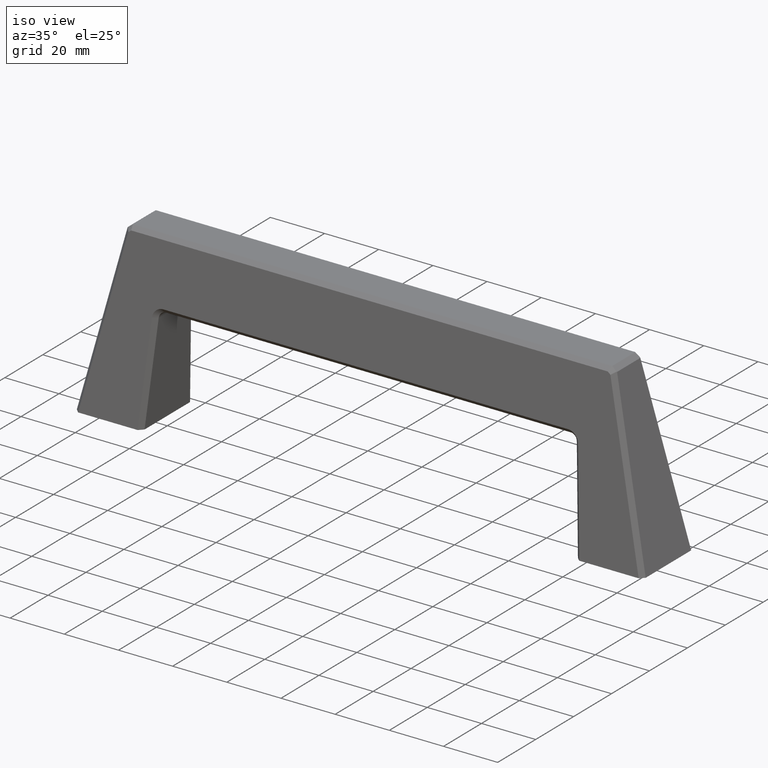
[diagram: clean part render]
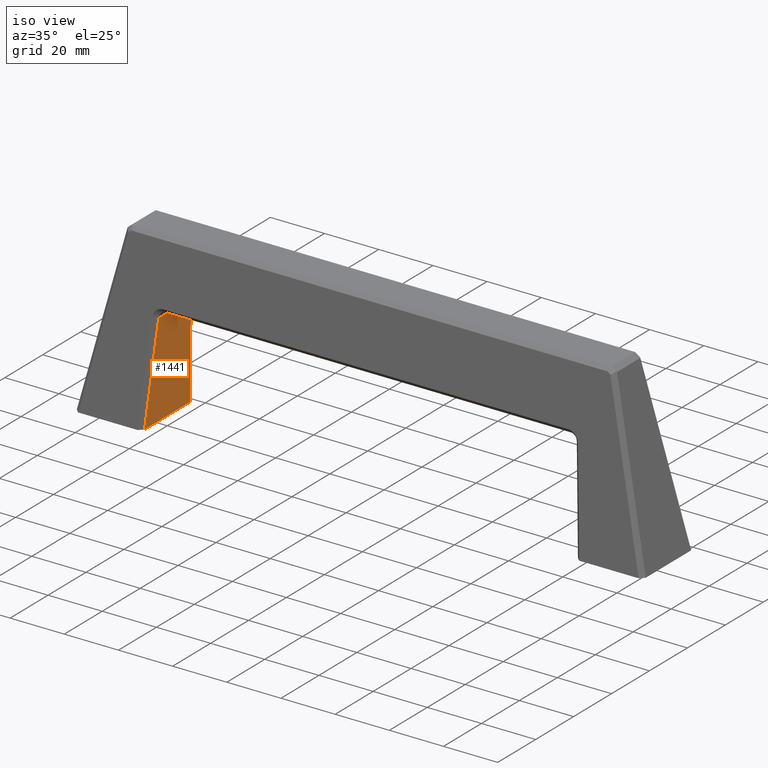
[diagram: same view with one face highlighted and labeled with its STEP entity id]
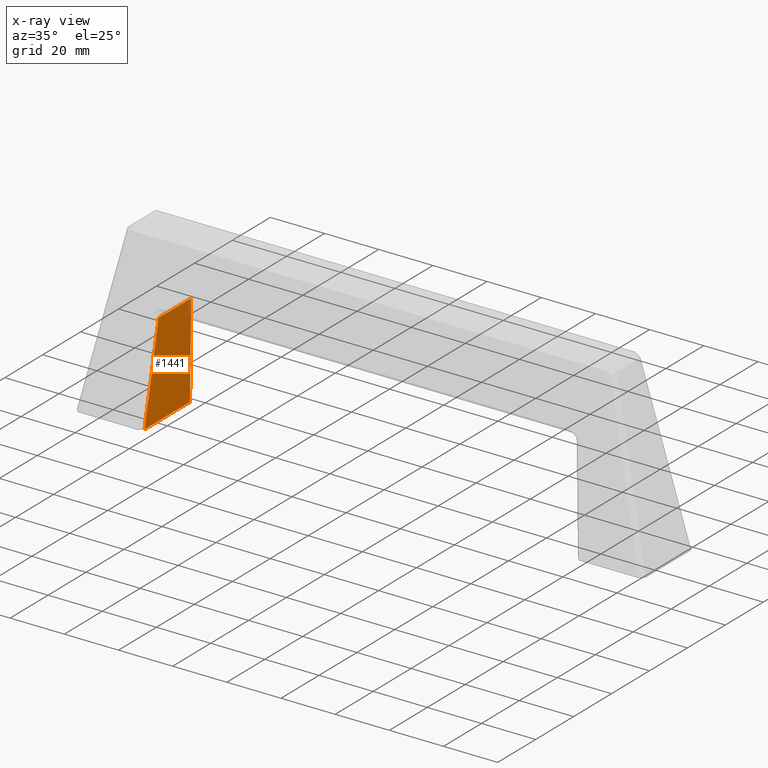
[diagram: x-ray of the same camera — body ghosted, the highlighted face saturated]
A machine part, iso view. The second image highlights one B-rep face of the part: STEP entity #1441.
The next image is the same camera in x-ray: the body ghosted, the highlighted face saturated — about 2% of this face is hidden behind the body in this view.
In plain terms, the highlighted face is a freeform B-spline surface patch.
Its self-contained STEP definition (entity closure, byte-faithful):
#565=CARTESIAN_POINT('',(-77.177620223309404,-8.553831861802038,36.691737091245649));
#566=VERTEX_POINT('',#565);
#612=CARTESIAN_POINT('',(-80.0,-11.993462063684181,0.0));
#613=VERTEX_POINT('',#612);
#621=CARTESIAN_POINT('',(-77.177620223309404,-8.553831861802038,36.691737091245649));
#622=CARTESIAN_POINT('',(-80.0,-11.993462063684181,0.0));
#623=QUASI_UNIFORM_CURVE('',1,(#621,#622),.UNSPECIFIED.,.F.,.U.);
#624=EDGE_CURVE('',#566,#613,#623,.T.);
#761=CARTESIAN_POINT('',(-77.177620223309404,8.553831861802189,36.691737091245649));
#762=VERTEX_POINT('',#761);
#813=CARTESIAN_POINT('',(-80.0,11.993462063683999,0.0));
#814=VERTEX_POINT('',#813);
#826=CARTESIAN_POINT('',(-80.0,11.993462063683999,0.0));
#827=CARTESIAN_POINT('',(-77.177620223309404,8.553831861802189,36.691737091245649));
#828=QUASI_UNIFORM_CURVE('',1,(#826,#827),.UNSPECIFIED.,.F.,.U.);
#829=EDGE_CURVE('',#814,#762,#828,.T.);
#1235=CARTESIAN_POINT('',(-77.177620223309404,8.553831861802189,36.691737091245649));
#1236=CARTESIAN_POINT('',(-77.177620223309404,-8.553831861802038,36.691737091245649));
#1237=QUASI_UNIFORM_CURVE('',1,(#1235,#1236),.UNSPECIFIED.,.F.,.U.);
#1238=EDGE_CURVE('',#762,#566,#1237,.T.);
#1426=CARTESIAN_POINT('',(-77.036642252956128,-13.191608341312600,38.524490665580771));
#1427=CARTESIAN_POINT('',(-80.140977945119261,-13.191608341312600,-1.832753246285424));
#1428=CARTESIAN_POINT('',(-77.036642252956128,13.191607697932980,38.524490665580771));
#1429=CARTESIAN_POINT('',(-80.140977945119261,13.191607697932980,-1.832753246285424));
#1430=B_SPLINE_SURFACE_WITH_KNOTS('',1,1,((#1426,#1428),(#1427,#1429)),.UNSPECIFIED.,.F.,.F.,.U.,(2,2),(2,2),(0.0,40.476462743815681),(0.0,26.383216039245578),.UNSPECIFIED.);
#1431=ORIENTED_EDGE('',*,*,#1238,.T.);
#1432=ORIENTED_EDGE('',*,*,#624,.T.);
#1433=CARTESIAN_POINT('',(-80.0,11.993462063683999,0.0));
#1434=CARTESIAN_POINT('',(-80.0,-11.993462063684181,0.0));
#1435=QUASI_UNIFORM_CURVE('',1,(#1433,#1434),.UNSPECIFIED.,.F.,.U.);
#1436=EDGE_CURVE('',#814,#613,#1435,.T.);
#1437=ORIENTED_EDGE('',*,*,#1436,.F.);
#1438=ORIENTED_EDGE('',*,*,#829,.T.);
#1439=EDGE_LOOP('',(#1431,#1432,#1437,#1438));
#1440=FACE_OUTER_BOUND('',#1439,.T.);
#1441=ADVANCED_FACE('',(#1440),#1430,.T.);